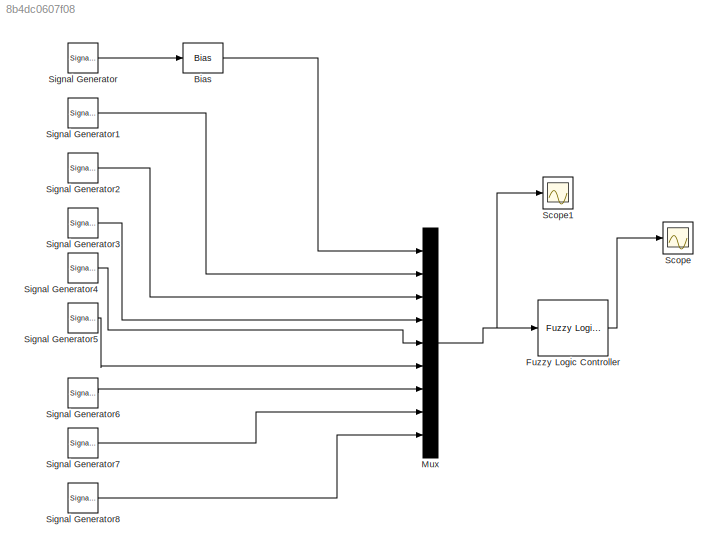
MODEL slx_8b4dc0607f08
KIND model
CONFIG AbsTol = auto
CONFIG EnableMultiTasking = off
CONFIG FixedStep = auto
CONFIG MaxStep = auto
CONFIG MinStep = auto
CONFIG RelTol = 1e-3
CONFIG SampleTimeConstraint = Unconstrained
CONFIG Solver = VariableStepAuto
CONFIG SolverName = VariableStepAuto
CONFIG StartTime = 0.0
CONFIG StopTime = 10.0
BLOCK [Bias] Bias
  Bias = 36.5
  SaturateOnIntegerOverflow = off
BLOCK [Reference] Fuzzy Logic Controller  REF=fuzblock/Fuzzy Logic   (lib defined in mdl_858b3b3e7478)
Controller
  Ports = [1, 1]
  SourceBlock = fuzblock/Fuzzy Logic \nController
  SourceProductBaseCode = FL
  SourceProductName = Fuzzy Logic Toolbox
  SourceType = Fuzzy Inference System
BLOCK [Mux] Mux
  DisplayOption = bar
  Inputs = 9
  Ports = [9, 1]
BLOCK [Scope] Scope
  Floating = off
  NumInputPorts = 1
  Ports = [1]
  ScopeSpecificationString = Simulink.scopes.TimeScopeBlockCfg('CurrentConfiguration', extmgr.ConfigurationSet(extmgr.Configuration('Core','General UI',true),extmgr.Configuration('Core','Source UI',true),extmgr.Configuration('Sources','WiredSimulink',true),extmgr.Configuration('Visuals','Time Domain',true,'SerializedDisplays',{struct('MinYLimReal','44.70838','MaxYLimReal','97.62455','YLabelReal','','MinYLimMag','44.70838','Ma...<+1349ch>
BLOCK [Scope] Scope1
  Floating = off
  NumInputPorts = 1
  Ports = [1]
  ScopeSpecificationString = Simulink.scopes.TimeScopeBlockCfg('CurrentConfiguration', extmgr.ConfigurationSet(extmgr.Configuration('Core','General UI',true),extmgr.Configuration('Core','Source UI',true),extmgr.Configuration('Sources','WiredSimulink',true,'DataLoggingVariableName','ScopeData1'),extmgr.Configuration('Visuals','Time Domain',true,'SerializedDisplays',{struct('MinYLimReal','-10.77607','MaxYLimReal','47.75446','YL...<+1529ch>
BLOCK [SignalGenerator] Signal Generator
  Amplitude = 5.5
  Frequency = 0.1
  Ports = [0, 1]
  Units = rad/sec
  WaveForm = random
BLOCK [SignalGenerator] Signal Generator1
  Amplitude = 5
  Frequency = 0.1
  Ports = [0, 1]
  Units = rad/sec
  WaveForm = random
BLOCK [SignalGenerator] Signal Generator2
  Amplitude = 5
  Frequency = 0.1
  Ports = [0, 1]
  Units = rad/sec
  WaveForm = random
BLOCK [SignalGenerator] Signal Generator3
  Amplitude = 5
  Frequency = 0.1
  Ports = [0, 1]
  Units = rad/sec
  WaveForm = random
BLOCK [SignalGenerator] Signal Generator4
  Amplitude = 5
  Frequency = 0.1
  Ports = [0, 1]
  Units = rad/sec
  WaveForm = random
BLOCK [SignalGenerator] Signal Generator5
  Amplitude = 5
  Frequency = 0.1
  Ports = [0, 1]
  Units = rad/sec
  WaveForm = random
BLOCK [SignalGenerator] Signal Generator6
  Amplitude = 5
  Frequency = 0.1
  Ports = [0, 1]
  Units = rad/sec
  WaveForm = random
BLOCK [SignalGenerator] Signal Generator7
  Amplitude = 5
  Frequency = 0.1
  Ports = [0, 1]
  Units = rad/sec
  WaveForm = random
BLOCK [SignalGenerator] Signal Generator8
  Amplitude = 5
  Frequency = 0.1
  Ports = [0, 1]
  Units = rad/sec
  WaveForm = random
LINE Bias:1 -> Mux:1
LINE Fuzzy Logic Controller:1 -> Scope:1
NET Mux:1 -> Fuzzy Logic Controller:1, Scope1:1
LINE Signal Generator1:1 -> Mux:2
LINE Signal Generator2:1 -> Mux:3
LINE Signal Generator3:1 -> Mux:4
LINE Signal Generator4:1 -> Mux:5
LINE Signal Generator5:1 -> Mux:6
LINE Signal Generator6:1 -> Mux:7
LINE Signal Generator7:1 -> Mux:8
LINE Signal Generator8:1 -> Mux:9
LINE Signal Generator:1 -> Bias:1
note: NET lines group one-source signal fan-out (src -> all destinations, sorted); 1:1 wires keep LINE
